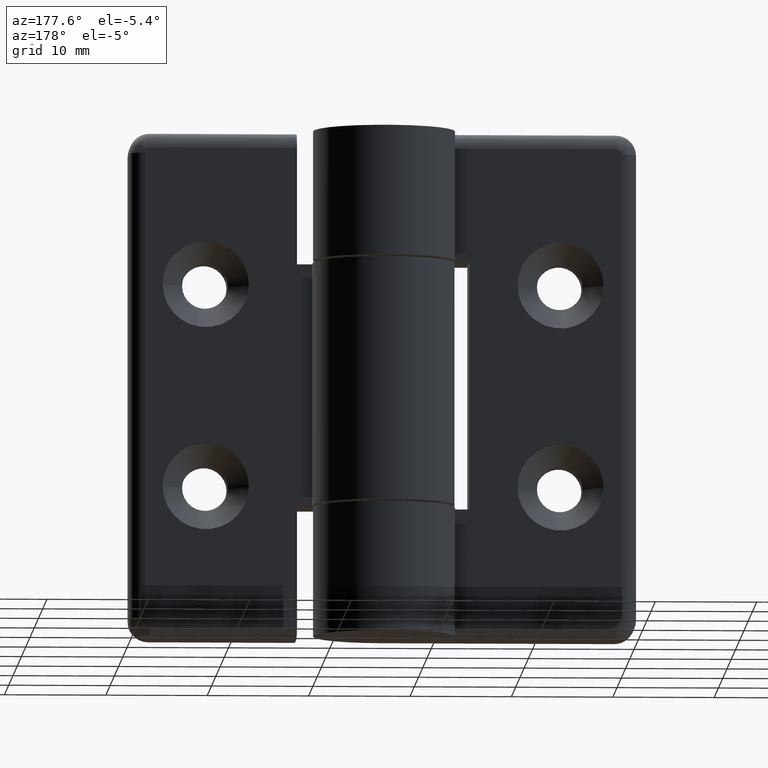
[diagram: clean part render]
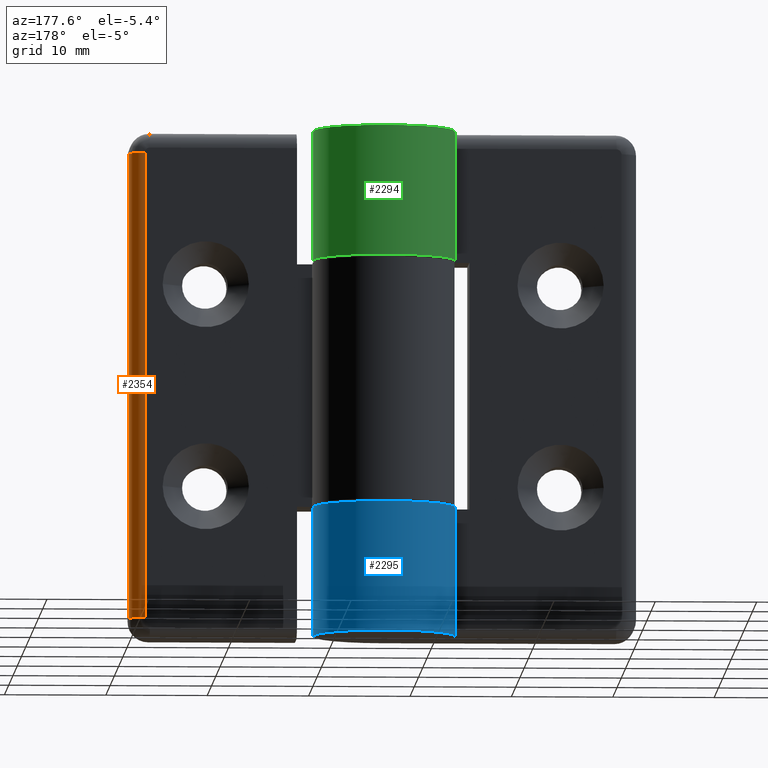
[diagram: same view with three faces highlighted in distinct colors, each labeled with its STEP entity id]
A machine part, auxiliary view with three faces highlighted in distinct colors.
Their STEP definitions:

[orange] entity #2354 — the highlighted cylindrical surface (edge-blend (fillet) strip) has radius 1.5 mm, axis along (0, 0, -1).
#278=FACE_OUTER_BOUND('',#445,.T.);
#445=EDGE_LOOP('',(#2049,#2050,#2051,#2052));
#601=LINE('',#4353,#754);
#602=LINE('',#4354,#755);
#754=VECTOR('',#3361,46.);
#755=VECTOR('',#3362,46.);
#943=CIRCLE('',#2645,1.5);
#947=CIRCLE('',#2649,1.5);
#1139=VERTEX_POINT('',#4328);
#1140=VERTEX_POINT('',#4330);
#1142=VERTEX_POINT('',#4344);
#1144=VERTEX_POINT('',#4347);
#1454=EDGE_CURVE('',#1140,#1139,#943,.T.);
#1458=EDGE_CURVE('',#1144,#1142,#947,.T.);
#1461=EDGE_CURVE('',#1139,#1144,#601,.T.);
#1462=EDGE_CURVE('',#1142,#1140,#602,.T.);
#2049=ORIENTED_EDGE('',*,*,#1454,.T.);
#2050=ORIENTED_EDGE('',*,*,#1461,.T.);
#2051=ORIENTED_EDGE('',*,*,#1458,.T.);
#2052=ORIENTED_EDGE('',*,*,#1462,.T.);
#2219=CYLINDRICAL_SURFACE('',#2652,1.5);
#2354=ADVANCED_FACE('',(#278),#2219,.T.);
#2645=AXIS2_PLACEMENT_3D('',#4331,#3345,#3346);
#2649=AXIS2_PLACEMENT_3D('',#4348,#3353,#3354);
#2652=AXIS2_PLACEMENT_3D('',#4352,#3359,#3360);
#3345=DIRECTION('center_axis',(0.,0.,-1.));
#3346=DIRECTION('ref_axis',(-1.,0.,0.));
#3353=DIRECTION('center_axis',(0.,0.,1.));
#3354=DIRECTION('ref_axis',(0.,1.,0.));
#3359=DIRECTION('center_axis',(0.,0.,1.));
#3360=DIRECTION('ref_axis',(-0.707106781186546,0.707106781186549,0.));
#3361=DIRECTION('',(0.,0.,-1.));
#3362=DIRECTION('',(0.,0.,1.));
#4328=CARTESIAN_POINT('',(-23.5,-2.,23.));
#4330=CARTESIAN_POINT('',(-25.,-3.5,23.));
#4331=CARTESIAN_POINT('Origin',(-23.5,-3.5,23.));
#4344=CARTESIAN_POINT('',(-25.,-3.5,-23.));
#4347=CARTESIAN_POINT('',(-23.5,-2.,-23.));
#4348=CARTESIAN_POINT('Origin',(-23.5,-3.5,-23.));
#4352=CARTESIAN_POINT('Origin',(-23.5,-3.5,0.));
#4353=CARTESIAN_POINT('',(-23.5,-2.,0.));
#4354=CARTESIAN_POINT('',(-25.,-3.5,0.));

[blue] entity #2295 — the highlighted cylindrical surface (partial cylindrical patch) has radius 7 mm, axis along (0, 0, 1).
#219=FACE_OUTER_BOUND('',#381,.T.);
#381=EDGE_LOOP('',(#1810,#1811,#1812,#1813));
#548=LINE('',#3929,#701);
#553=LINE('',#3939,#706);
#701=VECTOR('',#3046,12.8);
#706=VECTOR('',#3057,12.8);
#864=CIRCLE('',#2506,7.);
#869=CIRCLE('',#2517,7.);
#1046=VERTEX_POINT('',#3883);
#1047=VERTEX_POINT('',#3885);
#1057=VERTEX_POINT('',#3913);
#1058=VERTEX_POINT('',#3915);
#1307=EDGE_CURVE('',#1047,#1046,#864,.T.);
#1320=EDGE_CURVE('',#1058,#1057,#869,.T.);
#1327=EDGE_CURVE('',#1057,#1047,#548,.T.);
#1333=EDGE_CURVE('',#1058,#1046,#553,.T.);
#1810=ORIENTED_EDGE('',*,*,#1320,.T.);
#1811=ORIENTED_EDGE('',*,*,#1327,.T.);
#1812=ORIENTED_EDGE('',*,*,#1307,.T.);
#1813=ORIENTED_EDGE('',*,*,#1333,.F.);
#2193=CYLINDRICAL_SURFACE('',#2524,7.);
#2295=ADVANCED_FACE('',(#219),#2193,.T.);
#2506=AXIS2_PLACEMENT_3D('',#3886,#3001,#3002);
#2517=AXIS2_PLACEMENT_3D('',#3916,#3031,#3032);
#2524=AXIS2_PLACEMENT_3D('',#3938,#3055,#3056);
#3001=DIRECTION('center_axis',(0.,0.,1.));
#3002=DIRECTION('ref_axis',(-1.22464679914735E-16,1.,0.));
#3031=DIRECTION('center_axis',(0.,0.,-1.));
#3032=DIRECTION('ref_axis',(-1.22464679914735E-16,1.,0.));
#3046=DIRECTION('',(0.,0.,-1.));
#3055=DIRECTION('center_axis',(0.,0.,1.));
#3056=DIRECTION('ref_axis',(-1.22464679914735E-16,1.,0.));
#3057=DIRECTION('',(0.,0.,-1.));
#3883=CARTESIAN_POINT('',(-7.,8.57252759403147E-16,-25.));
#3885=CARTESIAN_POINT('',(8.57252759403147E-16,-7.,-25.));
#3886=CARTESIAN_POINT('Origin',(0.,0.,-25.));
#3913=CARTESIAN_POINT('',(4.28626379701574E-16,-7.,-12.2));
#3915=CARTESIAN_POINT('',(-7.,9.83737892014152E-16,-12.2));
#3916=CARTESIAN_POINT('Origin',(0.,0.,-12.2));
#3929=CARTESIAN_POINT('',(8.57252759403147E-16,-7.,0.));
#3938=CARTESIAN_POINT('Origin',(0.,0.,0.));
#3939=CARTESIAN_POINT('',(-7.,8.57252759403147E-16,0.));

[green] entity #2294 — the highlighted cylindrical surface (partial cylindrical patch) has radius 7 mm, axis along (0, 0, 1).
#218=FACE_OUTER_BOUND('',#380,.T.);
#380=EDGE_LOOP('',(#1806,#1807,#1808,#1809));
#549=LINE('',#3931,#702);
#552=LINE('',#3936,#705);
#702=VECTOR('',#3047,12.8);
#705=VECTOR('',#3052,12.8);
#870=CIRCLE('',#2520,7.);
#871=CIRCLE('',#2523,7.);
#1060=VERTEX_POINT('',#3923);
#1061=VERTEX_POINT('',#3925);
#1062=VERTEX_POINT('',#3930);
#1063=VERTEX_POINT('',#3935);
#1325=EDGE_CURVE('',#1061,#1060,#870,.T.);
#1328=EDGE_CURVE('',#1062,#1061,#549,.T.);
#1331=EDGE_CURVE('',#1063,#1060,#552,.T.);
#1332=EDGE_CURVE('',#1063,#1062,#871,.T.);
#1806=ORIENTED_EDGE('',*,*,#1325,.T.);
#1807=ORIENTED_EDGE('',*,*,#1331,.F.);
#1808=ORIENTED_EDGE('',*,*,#1332,.T.);
#1809=ORIENTED_EDGE('',*,*,#1328,.T.);
#2192=CYLINDRICAL_SURFACE('',#2522,7.);
#2294=ADVANCED_FACE('',(#218),#2192,.T.);
#2520=AXIS2_PLACEMENT_3D('',#3926,#3041,#3042);
#2522=AXIS2_PLACEMENT_3D('',#3934,#3050,#3051);
#2523=AXIS2_PLACEMENT_3D('',#3937,#3053,#3054);
#3041=DIRECTION('center_axis',(0.,0.,1.));
#3042=DIRECTION('ref_axis',(-1.22464679914735E-16,1.,0.));
#3047=DIRECTION('',(0.,0.,-1.));
#3050=DIRECTION('center_axis',(0.,0.,1.));
#3051=DIRECTION('ref_axis',(-1.22464679914735E-16,1.,0.));
#3052=DIRECTION('',(0.,0.,-1.));
#3053=DIRECTION('center_axis',(0.,0.,-1.));
#3054=DIRECTION('ref_axis',(-1.22464679914735E-16,1.,0.));
#3923=CARTESIAN_POINT('',(-7.,9.83737892014152E-16,12.2));
#3925=CARTESIAN_POINT('',(1.53884940432673E-15,-7.,12.2));
#3926=CARTESIAN_POINT('Origin',(0.,0.,12.2));
#3930=CARTESIAN_POINT('',(8.57252759403147E-16,-7.,25.));
#3931=CARTESIAN_POINT('',(8.57252759403147E-16,-7.,0.));
#3934=CARTESIAN_POINT('Origin',(0.,0.,0.));
#3935=CARTESIAN_POINT('',(-7.,8.57252759403147E-16,25.));
#3936=CARTESIAN_POINT('',(-7.,8.57252759403147E-16,0.));
#3937=CARTESIAN_POINT('Origin',(0.,0.,25.));